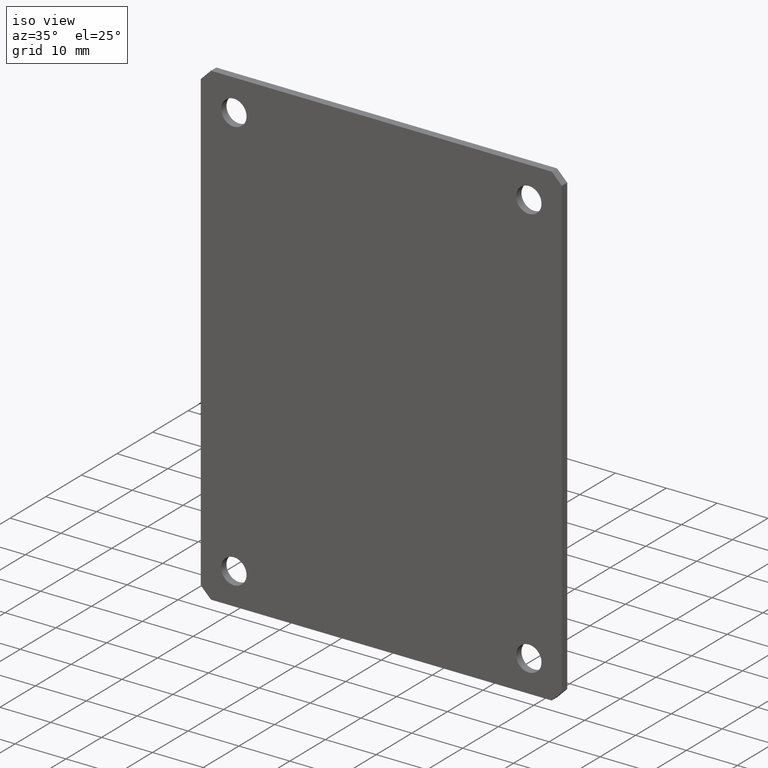
[diagram: clean part render]
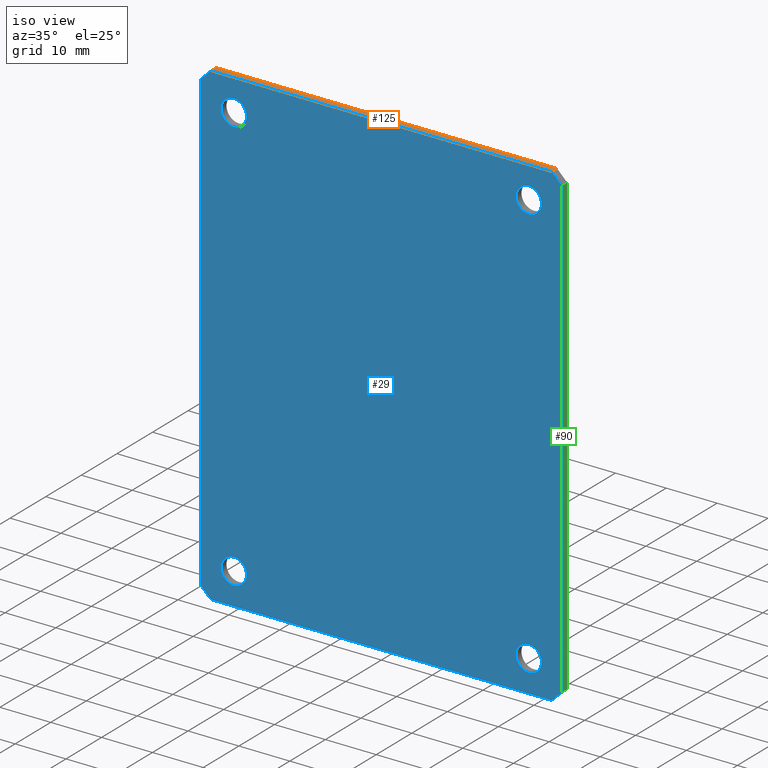
[diagram: same view with three faces highlighted in distinct colors, each labeled with its STEP entity id]
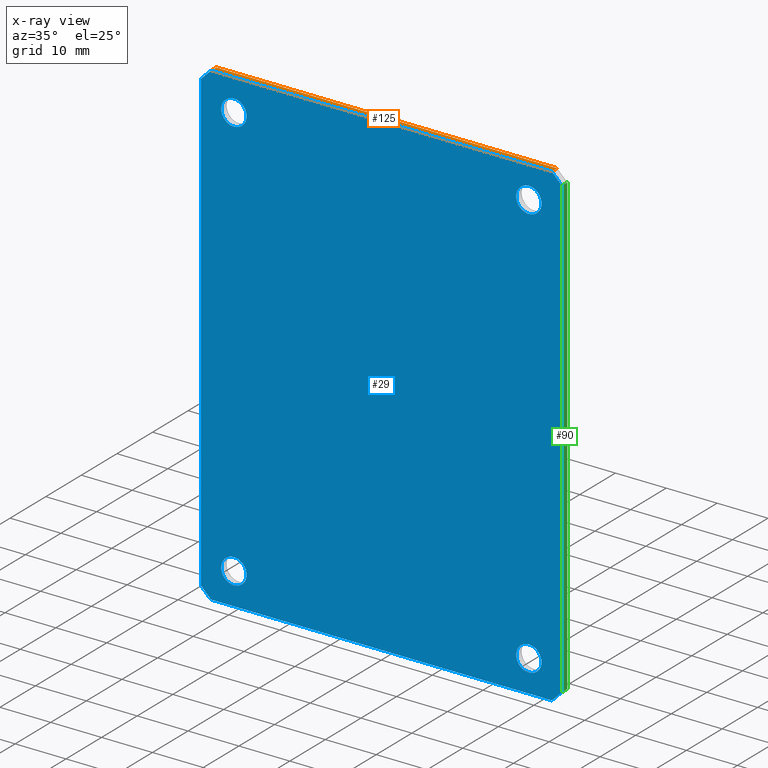
[diagram: x-ray of the same camera — body ghosted, the three highlighted faces saturated]
A machine part, iso view with three faces highlighted in distinct colors.
The next image is the same camera in x-ray (body ghosted, the three faces saturated) — at least one of them is partly hidden behind the body in this view.
Their STEP definitions:

[orange] entity #125 — the highlighted planar face has unit normal (0, 0, -1).
#1 = VERTEX_POINT ( 'NONE', #412 ) ;
#9 = EDGE_CURVE ( 'NONE', #12, #134, #400, .T. ) ;
#12 = VERTEX_POINT ( 'NONE', #395 ) ;
#14 = EDGE_LOOP ( 'NONE', ( #49, #117, #111, #92 ) ) ;
#49 = ORIENTED_EDGE ( 'NONE', *, *, #9, .T. ) ;
#58 = EDGE_CURVE ( 'NONE', #185, #134, #470, .T. ) ;
#92 = ORIENTED_EDGE ( 'NONE', *, *, #126, .T. ) ;
#111 = ORIENTED_EDGE ( 'NONE', *, *, #184, .F. ) ;
#117 = ORIENTED_EDGE ( 'NONE', *, *, #58, .F. ) ;
#125 = ADVANCED_FACE ( 'NONE', ( #544 ), #547, .F. ) ;
#126 = EDGE_CURVE ( 'NONE', #1, #12, #539, .T. ) ;
#134 = VERTEX_POINT ( 'NONE', #591 ) ;
#184 = EDGE_CURVE ( 'NONE', #1, #185, #279, .T. ) ;
#185 = VERTEX_POINT ( 'NONE', #275 ) ;
#275 = CARTESIAN_POINT ( 'NONE',  ( 33.49999999999999300, 1.500000000000000000, 46.99999999999999300 ) ) ;
#276 = DIRECTION ( 'NONE',  ( 1.000000000000000000, -0.0000000000000000000, -0.0000000000000000000 ) ) ;
#277 = VECTOR ( 'NONE', #276, 1000.000000000000000 ) ;
#278 = CARTESIAN_POINT ( 'NONE',  ( 33.49999999999999300, 1.500000000000000000, 46.99999999999999300 ) ) ;
#279 = LINE ( 'NONE', #278, #277 ) ;
#395 = CARTESIAN_POINT ( 'NONE',  ( -33.49999999999999300, 0.0000000000000000000, 46.99999999999999300 ) ) ;
#397 = DIRECTION ( 'NONE',  ( 1.000000000000000000, -0.0000000000000000000, -0.0000000000000000000 ) ) ;
#398 = VECTOR ( 'NONE', #397, 1000.000000000000000 ) ;
#399 = CARTESIAN_POINT ( 'NONE',  ( 33.49999999999999300, 0.0000000000000000000, 46.99999999999999300 ) ) ;
#400 = LINE ( 'NONE', #399, #398 ) ;
#412 = CARTESIAN_POINT ( 'NONE',  ( -33.49999999999999300, 1.500000000000000000, 46.99999999999999300 ) ) ;
#467 = DIRECTION ( 'NONE',  ( -0.0000000000000000000, -1.000000000000000000, -0.0000000000000000000 ) ) ;
#468 = VECTOR ( 'NONE', #467, 1000.000000000000000 ) ;
#469 = CARTESIAN_POINT ( 'NONE',  ( 33.49999999999999300, 1.500000000000000000, 46.99999999999999300 ) ) ;
#470 = LINE ( 'NONE', #469, #468 ) ;
#539 = LINE ( 'NONE', #602, #601 ) ;
#540 = DIRECTION ( 'NONE',  ( -1.000000000000000000, 0.0000000000000000000, -0.0000000000000000000 ) ) ;
#541 = DIRECTION ( 'NONE',  ( 0.0000000000000000000, 0.0000000000000000000, -1.000000000000000000 ) ) ;
#542 = CARTESIAN_POINT ( 'NONE',  ( 33.49999999999999300, 1.500000000000000000, 46.99999999999999300 ) ) ;
#543 = AXIS2_PLACEMENT_3D ( 'NONE', #542, #541, #540 ) ;
#544 = FACE_OUTER_BOUND ( 'NONE', #14, .T. ) ;
#547 = PLANE ( 'NONE',  #543 ) ;
#591 = CARTESIAN_POINT ( 'NONE',  ( 33.49999999999999300, 0.0000000000000000000, 46.99999999999999300 ) ) ;
#600 = DIRECTION ( 'NONE',  ( -0.0000000000000000000, -1.000000000000000000, -0.0000000000000000000 ) ) ;
#601 = VECTOR ( 'NONE', #600, 1000.000000000000000 ) ;
#602 = CARTESIAN_POINT ( 'NONE',  ( -33.49999999999999300, 1.500000000000000000, 46.99999999999999300 ) ) ;

[blue] entity #29 — the highlighted planar face has unit normal (0, 1, 0).
#2 = ORIENTED_EDGE ( 'NONE', *, *, #6, .F. ) ;
#5 = VERTEX_POINT ( 'NONE', #393 ) ;
#6 = EDGE_CURVE ( 'NONE', #5, #138, #392, .T. ) ;
#7 = ORIENTED_EDGE ( 'NONE', *, *, #63, .F. ) ;
#8 = ORIENTED_EDGE ( 'NONE', *, *, #9, .F. ) ;
#9 = EDGE_CURVE ( 'NONE', #12, #134, #400, .T. ) ;
#10 = ORIENTED_EDGE ( 'NONE', *, *, #60, .F. ) ;
#12 = VERTEX_POINT ( 'NONE', #395 ) ;
#13 = VERTEX_POINT ( 'NONE', #396 ) ;
#15 = ORIENTED_EDGE ( 'NONE', *, *, #16, .F. ) ;
#16 = EDGE_CURVE ( 'NONE', #134, #17, #411, .T. ) ;
#17 = VERTEX_POINT ( 'NONE', #407 ) ;
#19 = EDGE_CURVE ( 'NONE', #17, #62, #406, .T. ) ;
#21 = ORIENTED_EDGE ( 'NONE', *, *, #19, .F. ) ;
#25 = EDGE_LOOP ( 'NONE', ( #28, #26 ) ) ;
#26 = ORIENTED_EDGE ( 'NONE', *, *, #27, .T. ) ;
#27 = EDGE_CURVE ( 'NONE', #212, #215, #529, .T. ) ;
#28 = ORIENTED_EDGE ( 'NONE', *, *, #214, .T. ) ;
#29 = ADVANCED_FACE ( 'NONE', ( #524, #523, #522, #521, #520 ), #519, .F. ) ;
#30 = EDGE_LOOP ( 'NONE', ( #181, #179 ) ) ;
#36 = EDGE_LOOP ( 'NONE', ( #37, #43 ) ) ;
#37 = ORIENTED_EDGE ( 'NONE', *, *, #219, .T. ) ;
#38 = EDGE_CURVE ( 'NONE', #140, #13, #505, .T. ) ;
#39 = ORIENTED_EDGE ( 'NONE', *, *, #173, .T. ) ;
#40 = EDGE_CURVE ( 'NONE', #175, #174, #501, .T. ) ;
#42 = ORIENTED_EDGE ( 'NONE', *, *, #40, .T. ) ;
#43 = ORIENTED_EDGE ( 'NONE', *, *, #44, .T. ) ;
#44 = EDGE_CURVE ( 'NONE', #202, #220, #496, .T. ) ;
#47 = EDGE_LOOP ( 'NONE', ( #39, #42 ) ) ;
#60 = EDGE_CURVE ( 'NONE', #13, #12, #462, .T. ) ;
#61 = ORIENTED_EDGE ( 'NONE', *, *, #38, .F. ) ;
#62 = VERTEX_POINT ( 'NONE', #458 ) ;
#63 = EDGE_CURVE ( 'NONE', #62, #5, #457, .T. ) ;
#134 = VERTEX_POINT ( 'NONE', #591 ) ;
#138 = VERTEX_POINT ( 'NONE', #590 ) ;
#139 = EDGE_CURVE ( 'NONE', #138, #140, #589, .T. ) ;
#140 = VERTEX_POINT ( 'NONE', #585 ) ;
#153 = EDGE_CURVE ( 'NONE', #154, #163, #624, .T. ) ;
#154 = VERTEX_POINT ( 'NONE', #619 ) ;
#163 = VERTEX_POINT ( 'NONE', #227 ) ;
#173 = EDGE_CURVE ( 'NONE', #174, #175, #239, .T. ) ;
#174 = VERTEX_POINT ( 'NONE', #234 ) ;
#175 = VERTEX_POINT ( 'NONE', #233 ) ;
#178 = EDGE_LOOP ( 'NONE', ( #180, #2, #7, #21, #15, #8, #10, #61 ) ) ;
#179 = ORIENTED_EDGE ( 'NONE', *, *, #182, .T. ) ;
#180 = ORIENTED_EDGE ( 'NONE', *, *, #139, .F. ) ;
#181 = ORIENTED_EDGE ( 'NONE', *, *, #153, .T. ) ;
#182 = EDGE_CURVE ( 'NONE', #163, #154, #284, .T. ) ;
#202 = VERTEX_POINT ( 'NONE', #339 ) ;
#212 = VERTEX_POINT ( 'NONE', #317 ) ;
#214 = EDGE_CURVE ( 'NONE', #215, #212, #316, .T. ) ;
#215 = VERTEX_POINT ( 'NONE', #311 ) ;
#219 = EDGE_CURVE ( 'NONE', #220, #202, #363, .T. ) ;
#220 = VERTEX_POINT ( 'NONE', #358 ) ;
#227 = CARTESIAN_POINT ( 'NONE',  ( -29.00000000000000000, 0.0000000000000000000, -38.25000000000000000 ) ) ;
#233 = CARTESIAN_POINT ( 'NONE',  ( 29.00000000000000000, 0.0000000000000000000, -38.25000000000000000 ) ) ;
#234 = CARTESIAN_POINT ( 'NONE',  ( 29.00000000000000000, 0.0000000000000000000, -43.25000000000000700 ) ) ;
#235 = DIRECTION ( 'NONE',  ( 0.0000000000000000000, 0.0000000000000000000, -1.000000000000000000 ) ) ;
#236 = DIRECTION ( 'NONE',  ( -0.0000000000000000000, 1.000000000000000000, -0.0000000000000000000 ) ) ;
#237 = CARTESIAN_POINT ( 'NONE',  ( 29.00000000000000000, 0.0000000000000000000, -40.75000000000000000 ) ) ;
#238 = AXIS2_PLACEMENT_3D ( 'NONE', #237, #236, #235 ) ;
#239 = CIRCLE ( 'NONE', #238, 2.500000000000002200 ) ;
#280 = DIRECTION ( 'NONE',  ( 0.0000000000000000000, 0.0000000000000000000, 1.000000000000000000 ) ) ;
#281 = DIRECTION ( 'NONE',  ( 0.0000000000000000000, 1.000000000000000000, 0.0000000000000000000 ) ) ;
#282 = CARTESIAN_POINT ( 'NONE',  ( -29.00000000000000000, 0.0000000000000000000, -40.75000000000000000 ) ) ;
#283 = AXIS2_PLACEMENT_3D ( 'NONE', #282, #281, #280 ) ;
#284 = CIRCLE ( 'NONE', #283, 2.500000000000002200 ) ;
#311 = CARTESIAN_POINT ( 'NONE',  ( 29.00000000000000000, 0.0000000000000000000, 38.25000000000000000 ) ) ;
#312 = DIRECTION ( 'NONE',  ( 0.0000000000000000000, 0.0000000000000000000, 1.000000000000000000 ) ) ;
#313 = DIRECTION ( 'NONE',  ( 0.0000000000000000000, 1.000000000000000000, 0.0000000000000000000 ) ) ;
#314 = CARTESIAN_POINT ( 'NONE',  ( 29.00000000000000000, 0.0000000000000000000, 40.75000000000000000 ) ) ;
#315 = AXIS2_PLACEMENT_3D ( 'NONE', #314, #313, #312 ) ;
#316 = CIRCLE ( 'NONE', #315, 2.500000000000002200 ) ;
#317 = CARTESIAN_POINT ( 'NONE',  ( 29.00000000000000000, 0.0000000000000000000, 43.25000000000000700 ) ) ;
#339 = CARTESIAN_POINT ( 'NONE',  ( -29.00000000000000000, 0.0000000000000000000, 43.25000000000000700 ) ) ;
#358 = CARTESIAN_POINT ( 'NONE',  ( -29.00000000000000000, 0.0000000000000000000, 38.25000000000000000 ) ) ;
#359 = DIRECTION ( 'NONE',  ( 0.0000000000000000000, 0.0000000000000000000, -1.000000000000000000 ) ) ;
#360 = DIRECTION ( 'NONE',  ( -0.0000000000000000000, 1.000000000000000000, -0.0000000000000000000 ) ) ;
#361 = CARTESIAN_POINT ( 'NONE',  ( -29.00000000000000000, 0.0000000000000000000, 40.75000000000000000 ) ) ;
#362 = AXIS2_PLACEMENT_3D ( 'NONE', #361, #360, #359 ) ;
#363 = CIRCLE ( 'NONE', #362, 2.500000000000002200 ) ;
#389 = DIRECTION ( 'NONE',  ( -1.000000000000000000, 0.0000000000000000000, 0.0000000000000000000 ) ) ;
#390 = VECTOR ( 'NONE', #389, 1000.000000000000000 ) ;
#391 = CARTESIAN_POINT ( 'NONE',  ( 33.49999999999999300, 0.0000000000000000000, -46.99999999999999300 ) ) ;
#392 = LINE ( 'NONE', #391, #390 ) ;
#393 = CARTESIAN_POINT ( 'NONE',  ( 33.49999999999999300, 0.0000000000000000000, -46.99999999999999300 ) ) ;
#395 = CARTESIAN_POINT ( 'NONE',  ( -33.49999999999999300, 0.0000000000000000000, 46.99999999999999300 ) ) ;
#396 = CARTESIAN_POINT ( 'NONE',  ( -35.50000000000000000, 0.0000000000000000000, 44.99999999999996400 ) ) ;
#397 = DIRECTION ( 'NONE',  ( 1.000000000000000000, -0.0000000000000000000, -0.0000000000000000000 ) ) ;
#398 = VECTOR ( 'NONE', #397, 1000.000000000000000 ) ;
#399 = CARTESIAN_POINT ( 'NONE',  ( 33.49999999999999300, 0.0000000000000000000, 46.99999999999999300 ) ) ;
#400 = LINE ( 'NONE', #399, #398 ) ;
#403 = DIRECTION ( 'NONE',  ( -0.0000000000000000000, -0.0000000000000000000, -1.000000000000000000 ) ) ;
#404 = VECTOR ( 'NONE', #403, 1000.000000000000000 ) ;
#405 = CARTESIAN_POINT ( 'NONE',  ( 35.50000000000000000, 0.0000000000000000000, -44.99999999999996400 ) ) ;
#406 = LINE ( 'NONE', #405, #404 ) ;
#407 = CARTESIAN_POINT ( 'NONE',  ( 35.50000000000000000, 0.0000000000000000000, 44.99999999999996400 ) ) ;
#408 = DIRECTION ( 'NONE',  ( 0.7071067811865425800, -0.0000000000000000000, -0.7071067811865525700 ) ) ;
#409 = VECTOR ( 'NONE', #408, 999.9999999999998900 ) ;
#410 = CARTESIAN_POINT ( 'NONE',  ( 35.50000000000000000, 0.0000000000000000000, 44.99999999999996400 ) ) ;
#411 = LINE ( 'NONE', #410, #409 ) ;
#454 = DIRECTION ( 'NONE',  ( -0.7071067811865425800, 0.0000000000000000000, -0.7071067811865525700 ) ) ;
#455 = VECTOR ( 'NONE', #454, 999.9999999999998900 ) ;
#456 = CARTESIAN_POINT ( 'NONE',  ( 35.50000000000000000, 0.0000000000000000000, -44.99999999999996400 ) ) ;
#457 = LINE ( 'NONE', #456, #455 ) ;
#458 = CARTESIAN_POINT ( 'NONE',  ( 35.50000000000000000, 0.0000000000000000000, -44.99999999999996400 ) ) ;
#459 = DIRECTION ( 'NONE',  ( 0.7071067811865425800, 0.0000000000000000000, 0.7071067811865525700 ) ) ;
#460 = VECTOR ( 'NONE', #459, 999.9999999999998900 ) ;
#461 = CARTESIAN_POINT ( 'NONE',  ( -35.50000000000000000, 0.0000000000000000000, 44.99999999999996400 ) ) ;
#462 = LINE ( 'NONE', #461, #460 ) ;
#492 = DIRECTION ( 'NONE',  ( 0.0000000000000000000, 0.0000000000000000000, -1.000000000000000000 ) ) ;
#493 = DIRECTION ( 'NONE',  ( -0.0000000000000000000, 1.000000000000000000, -0.0000000000000000000 ) ) ;
#494 = CARTESIAN_POINT ( 'NONE',  ( -29.00000000000000000, 0.0000000000000000000, 40.75000000000000000 ) ) ;
#495 = AXIS2_PLACEMENT_3D ( 'NONE', #494, #493, #492 ) ;
#496 = CIRCLE ( 'NONE', #495, 2.500000000000002200 ) ;
#497 = DIRECTION ( 'NONE',  ( 0.0000000000000000000, 0.0000000000000000000, -1.000000000000000000 ) ) ;
#498 = DIRECTION ( 'NONE',  ( -0.0000000000000000000, 1.000000000000000000, -0.0000000000000000000 ) ) ;
#499 = CARTESIAN_POINT ( 'NONE',  ( 29.00000000000000000, 0.0000000000000000000, -40.75000000000000000 ) ) ;
#500 = AXIS2_PLACEMENT_3D ( 'NONE', #499, #498, #497 ) ;
#501 = CIRCLE ( 'NONE', #500, 2.500000000000002200 ) ;
#502 = DIRECTION ( 'NONE',  ( 0.0000000000000000000, 0.0000000000000000000, 1.000000000000000000 ) ) ;
#503 = VECTOR ( 'NONE', #502, 1000.000000000000000 ) ;
#504 = CARTESIAN_POINT ( 'NONE',  ( -35.50000000000000000, 0.0000000000000000000, -44.99999999999996400 ) ) ;
#505 = LINE ( 'NONE', #504, #503 ) ;
#514 = DIRECTION ( 'NONE',  ( 0.0000000000000000000, -0.0000000000000000000, 1.000000000000000000 ) ) ;
#515 = DIRECTION ( 'NONE',  ( 0.0000000000000000000, 1.000000000000000000, 0.0000000000000000000 ) ) ;
#516 = CARTESIAN_POINT ( 'NONE',  ( 2.081668171172168500E-014, 0.0000000000000000000, -80.50000000000042600 ) ) ;
#518 = AXIS2_PLACEMENT_3D ( 'NONE', #516, #515, #514 ) ;
#519 = PLANE ( 'NONE',  #518 ) ;
#520 = FACE_BOUND ( 'NONE', #36, .T. ) ;
#521 = FACE_BOUND ( 'NONE', #47, .T. ) ;
#522 = FACE_OUTER_BOUND ( 'NONE', #178, .T. ) ;
#523 = FACE_BOUND ( 'NONE', #30, .T. ) ;
#524 = FACE_BOUND ( 'NONE', #25, .T. ) ;
#525 = DIRECTION ( 'NONE',  ( 0.0000000000000000000, 0.0000000000000000000, 1.000000000000000000 ) ) ;
#526 = DIRECTION ( 'NONE',  ( 0.0000000000000000000, 1.000000000000000000, 0.0000000000000000000 ) ) ;
#527 = CARTESIAN_POINT ( 'NONE',  ( 29.00000000000000000, 0.0000000000000000000, 40.75000000000000000 ) ) ;
#528 = AXIS2_PLACEMENT_3D ( 'NONE', #527, #526, #525 ) ;
#529 = CIRCLE ( 'NONE', #528, 2.500000000000002200 ) ;
#585 = CARTESIAN_POINT ( 'NONE',  ( -35.50000000000000000, 0.0000000000000000000, -44.99999999999996400 ) ) ;
#586 = DIRECTION ( 'NONE',  ( -0.7071067811865425800, -0.0000000000000000000, 0.7071067811865525700 ) ) ;
#587 = VECTOR ( 'NONE', #586, 999.9999999999998900 ) ;
#588 = CARTESIAN_POINT ( 'NONE',  ( -35.50000000000000000, 0.0000000000000000000, -44.99999999999996400 ) ) ;
#589 = LINE ( 'NONE', #588, #587 ) ;
#590 = CARTESIAN_POINT ( 'NONE',  ( -33.49999999999999300, 0.0000000000000000000, -46.99999999999999300 ) ) ;
#591 = CARTESIAN_POINT ( 'NONE',  ( 33.49999999999999300, 0.0000000000000000000, 46.99999999999999300 ) ) ;
#619 = CARTESIAN_POINT ( 'NONE',  ( -29.00000000000000000, 0.0000000000000000000, -43.25000000000000700 ) ) ;
#620 = DIRECTION ( 'NONE',  ( 0.0000000000000000000, 0.0000000000000000000, 1.000000000000000000 ) ) ;
#621 = DIRECTION ( 'NONE',  ( 0.0000000000000000000, 1.000000000000000000, 0.0000000000000000000 ) ) ;
#622 = CARTESIAN_POINT ( 'NONE',  ( -29.00000000000000000, 0.0000000000000000000, -40.75000000000000000 ) ) ;
#623 = AXIS2_PLACEMENT_3D ( 'NONE', #622, #621, #620 ) ;
#624 = CIRCLE ( 'NONE', #623, 2.500000000000002200 ) ;

[green] entity #90 — the highlighted planar face has unit normal (-1, 0, 0).
#17 = VERTEX_POINT ( 'NONE', #407 ) ;
#19 = EDGE_CURVE ( 'NONE', #17, #62, #406, .T. ) ;
#51 = EDGE_CURVE ( 'NONE', #52, #57, #481, .T. ) ;
#52 = VERTEX_POINT ( 'NONE', #476 ) ;
#57 = VERTEX_POINT ( 'NONE', #471 ) ;
#62 = VERTEX_POINT ( 'NONE', #458 ) ;
#83 = ORIENTED_EDGE ( 'NONE', *, *, #19, .T. ) ;
#84 = ORIENTED_EDGE ( 'NONE', *, *, #85, .F. ) ;
#85 = EDGE_CURVE ( 'NONE', #57, #62, #435, .T. ) ;
#87 = EDGE_CURVE ( 'NONE', #52, #17, #431, .T. ) ;
#90 = ADVANCED_FACE ( 'NONE', ( #427 ), #425, .F. ) ;
#91 = EDGE_LOOP ( 'NONE', ( #83, #84, #112, #113 ) ) ;
#112 = ORIENTED_EDGE ( 'NONE', *, *, #51, .F. ) ;
#113 = ORIENTED_EDGE ( 'NONE', *, *, #87, .T. ) ;
#403 = DIRECTION ( 'NONE',  ( -0.0000000000000000000, -0.0000000000000000000, -1.000000000000000000 ) ) ;
#404 = VECTOR ( 'NONE', #403, 1000.000000000000000 ) ;
#405 = CARTESIAN_POINT ( 'NONE',  ( 35.50000000000000000, 0.0000000000000000000, -44.99999999999996400 ) ) ;
#406 = LINE ( 'NONE', #405, #404 ) ;
#407 = CARTESIAN_POINT ( 'NONE',  ( 35.50000000000000000, 0.0000000000000000000, 44.99999999999996400 ) ) ;
#421 = DIRECTION ( 'NONE',  ( 0.0000000000000000000, 0.0000000000000000000, 1.000000000000000000 ) ) ;
#422 = DIRECTION ( 'NONE',  ( -1.000000000000000000, 0.0000000000000000000, 0.0000000000000000000 ) ) ;
#423 = CARTESIAN_POINT ( 'NONE',  ( 35.50000000000000000, 1.500000000000000000, -44.99999999999996400 ) ) ;
#424 = AXIS2_PLACEMENT_3D ( 'NONE', #423, #422, #421 ) ;
#425 = PLANE ( 'NONE',  #424 ) ;
#427 = FACE_OUTER_BOUND ( 'NONE', #91, .T. ) ;
#428 = DIRECTION ( 'NONE',  ( -0.0000000000000000000, -1.000000000000000000, -0.0000000000000000000 ) ) ;
#429 = VECTOR ( 'NONE', #428, 1000.000000000000000 ) ;
#430 = CARTESIAN_POINT ( 'NONE',  ( 35.50000000000000000, 1.500000000000000000, 44.99999999999996400 ) ) ;
#431 = LINE ( 'NONE', #430, #429 ) ;
#432 = DIRECTION ( 'NONE',  ( -0.0000000000000000000, -1.000000000000000000, -0.0000000000000000000 ) ) ;
#433 = VECTOR ( 'NONE', #432, 1000.000000000000000 ) ;
#434 = CARTESIAN_POINT ( 'NONE',  ( 35.50000000000000000, 1.500000000000000000, -44.99999999999996400 ) ) ;
#435 = LINE ( 'NONE', #434, #433 ) ;
#458 = CARTESIAN_POINT ( 'NONE',  ( 35.50000000000000000, 0.0000000000000000000, -44.99999999999996400 ) ) ;
#471 = CARTESIAN_POINT ( 'NONE',  ( 35.50000000000000000, 1.500000000000000000, -44.99999999999996400 ) ) ;
#476 = CARTESIAN_POINT ( 'NONE',  ( 35.50000000000000000, 1.500000000000000000, 44.99999999999996400 ) ) ;
#478 = DIRECTION ( 'NONE',  ( -0.0000000000000000000, -0.0000000000000000000, -1.000000000000000000 ) ) ;
#479 = VECTOR ( 'NONE', #478, 1000.000000000000000 ) ;
#480 = CARTESIAN_POINT ( 'NONE',  ( 35.50000000000000000, 1.500000000000000000, -44.99999999999996400 ) ) ;
#481 = LINE ( 'NONE', #480, #479 ) ;